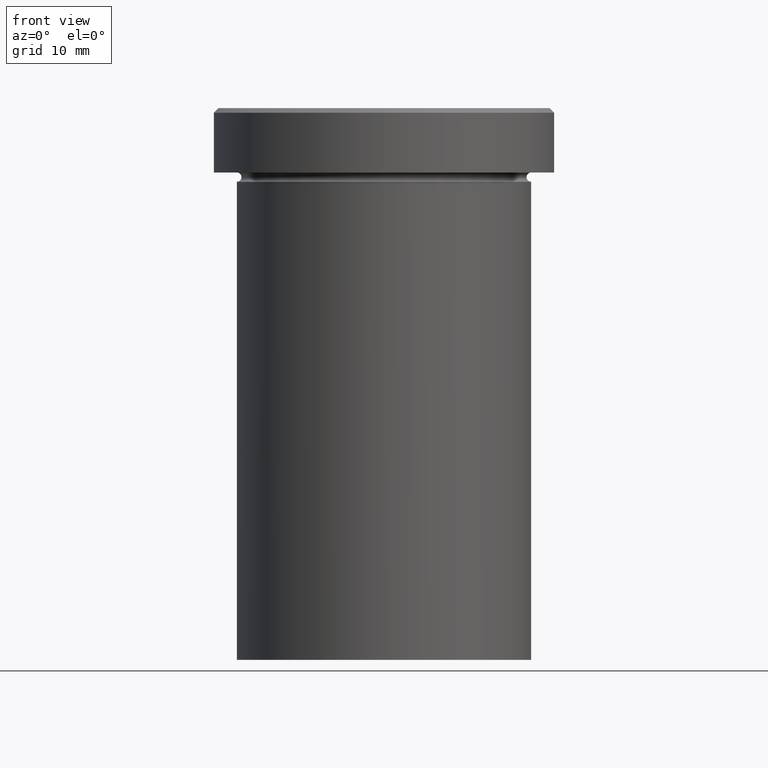
[diagram: clean part render]
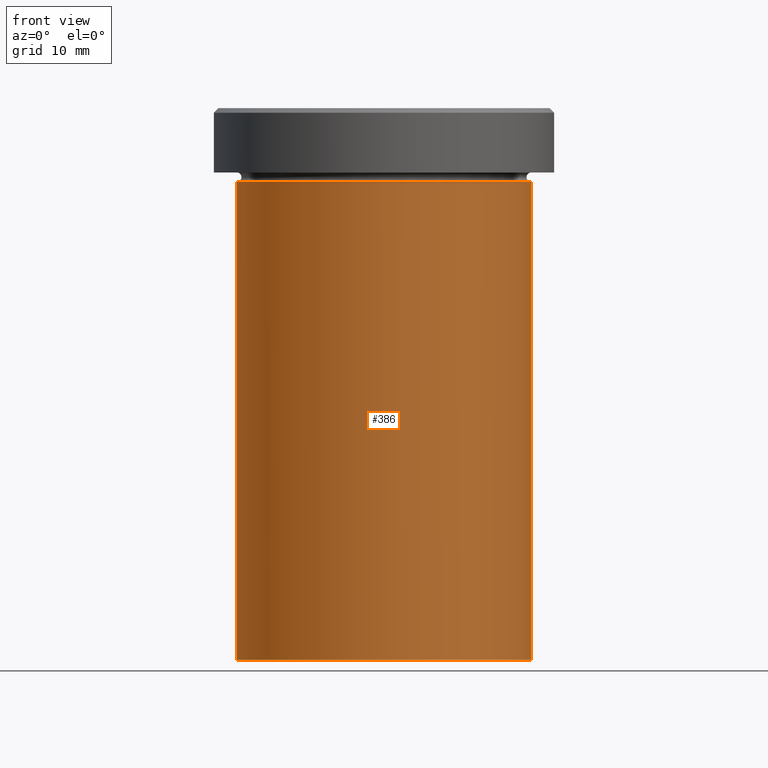
[diagram: same view with one face highlighted and labeled with its STEP entity id]
A machine part, front view. The second image highlights one B-rep face of the part: STEP entity #386.
In plain terms, the highlighted cylindrical surface (partial cylindrical patch) has radius 16 mm, axis along (-0, -0, 1).
Its self-contained STEP definition (entity closure, byte-faithful):
#1 = DIRECTION ( 'NONE',  ( 1.000000000000000000, 0.000000000000000000, 0.000000000000000000 ) ) ;
#11 = CIRCLE ( 'NONE', #300, 16.00000000000000000 ) ;
#23 = ORIENTED_EDGE ( 'NONE', *, *, #103, .T. ) ;
#30 = DIRECTION ( 'NONE',  ( -0.000000000000000000, -0.000000000000000000, 1.000000000000000000 ) ) ;
#33 = DIRECTION ( 'NONE',  ( 1.000000000000000000, 0.000000000000000000, 0.000000000000000000 ) ) ;
#38 = EDGE_CURVE ( 'NONE', #234, #350, #207, .T. ) ;
#44 = VERTEX_POINT ( 'NONE', #147 ) ;
#79 = DIRECTION ( 'NONE',  ( -0.000000000000000000, -0.000000000000000000, 1.000000000000000000 ) ) ;
#103 = EDGE_CURVE ( 'NONE', #292, #44, #11, .T. ) ;
#111 = LINE ( 'NONE', #239, #409 ) ;
#147 = CARTESIAN_POINT ( 'NONE',  ( 16.00000000000000000, 0.000000000000000000, -60.00000000000000000 ) ) ;
#150 = EDGE_CURVE ( 'NONE', #292, #234, #330, .T. ) ;
#153 = ORIENTED_EDGE ( 'NONE', *, *, #279, .T. ) ;
#154 = DIRECTION ( 'NONE',  ( 1.000000000000000000, 0.000000000000000000, 0.000000000000000000 ) ) ;
#156 = AXIS2_PLACEMENT_3D ( 'NONE', #363, #214, #154 ) ;
#159 = CYLINDRICAL_SURFACE ( 'NONE', #193, 16.00000000000000000 ) ;
#177 = VECTOR ( 'NONE', #290, 1000.000000000000000 ) ;
#193 = AXIS2_PLACEMENT_3D ( 'NONE', #315, #30, #33 ) ;
#199 = ORIENTED_EDGE ( 'NONE', *, *, #150, .F. ) ;
#207 = CIRCLE ( 'NONE', #156, 16.00000000000000000 ) ;
#208 = ORIENTED_EDGE ( 'NONE', *, *, #38, .F. ) ;
#213 = CARTESIAN_POINT ( 'NONE',  ( 0.000000000000000000, 0.000000000000000000, -60.00000000000000000 ) ) ;
#214 = DIRECTION ( 'NONE',  ( -0.000000000000000000, -0.000000000000000000, 1.000000000000000000 ) ) ;
#234 = VERTEX_POINT ( 'NONE', #296 ) ;
#239 = CARTESIAN_POINT ( 'NONE',  ( 16.00000000000000000, 0.000000000000000000, 0.000000000000000000 ) ) ;
#259 = EDGE_LOOP ( 'NONE', ( #199, #23, #153, #208 ) ) ;
#264 = CARTESIAN_POINT ( 'NONE',  ( -16.00000000000000000, 1.959434878635765131E-15, 0.000000000000000000 ) ) ;
#279 = EDGE_CURVE ( 'NONE', #44, #350, #111, .T. ) ;
#281 = FACE_OUTER_BOUND ( 'NONE', #259, .T. ) ;
#290 = DIRECTION ( 'NONE',  ( -0.000000000000000000, -0.000000000000000000, 1.000000000000000000 ) ) ;
#292 = VERTEX_POINT ( 'NONE', #305 ) ;
#296 = CARTESIAN_POINT ( 'NONE',  ( -16.00000000000000000, 1.959434878635765131E-15, -8.000000000000000000 ) ) ;
#300 = AXIS2_PLACEMENT_3D ( 'NONE', #213, #328, #1 ) ;
#305 = CARTESIAN_POINT ( 'NONE',  ( -16.00000000000000000, 1.959434878635765131E-15, -60.00000000000000000 ) ) ;
#311 = CARTESIAN_POINT ( 'NONE',  ( 16.00000000000000000, 0.000000000000000000, -8.000000000000000000 ) ) ;
#315 = CARTESIAN_POINT ( 'NONE',  ( 0.000000000000000000, 0.000000000000000000, 0.000000000000000000 ) ) ;
#328 = DIRECTION ( 'NONE',  ( -0.000000000000000000, -0.000000000000000000, 1.000000000000000000 ) ) ;
#330 = LINE ( 'NONE', #264, #177 ) ;
#350 = VERTEX_POINT ( 'NONE', #311 ) ;
#363 = CARTESIAN_POINT ( 'NONE',  ( 0.000000000000000000, 0.000000000000000000, -8.000000000000000000 ) ) ;
#386 = ADVANCED_FACE ( 'NONE', ( #281 ), #159, .T. ) ;
#409 = VECTOR ( 'NONE', #79, 1000.000000000000000 ) ;